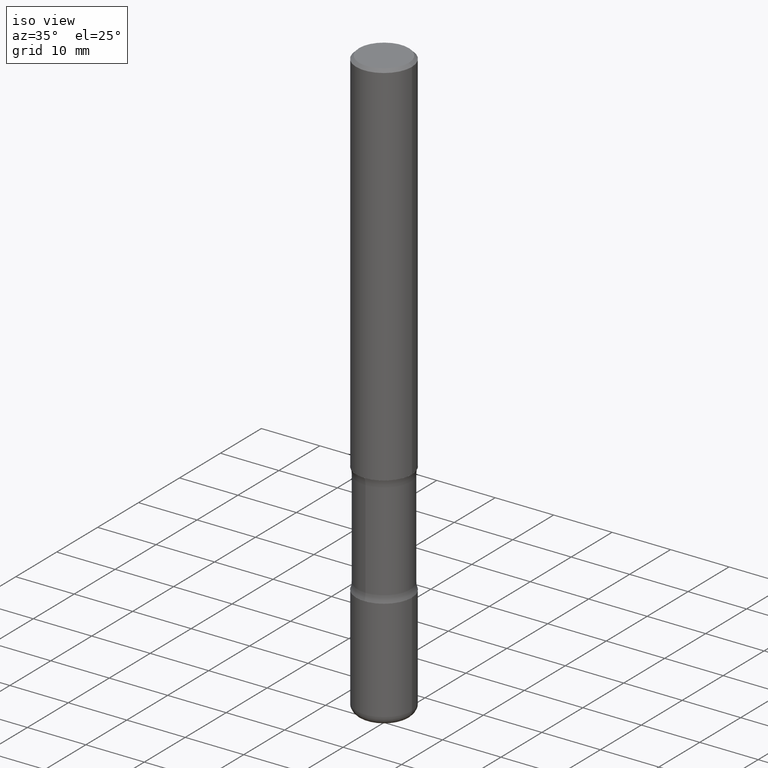
[diagram: clean part render]
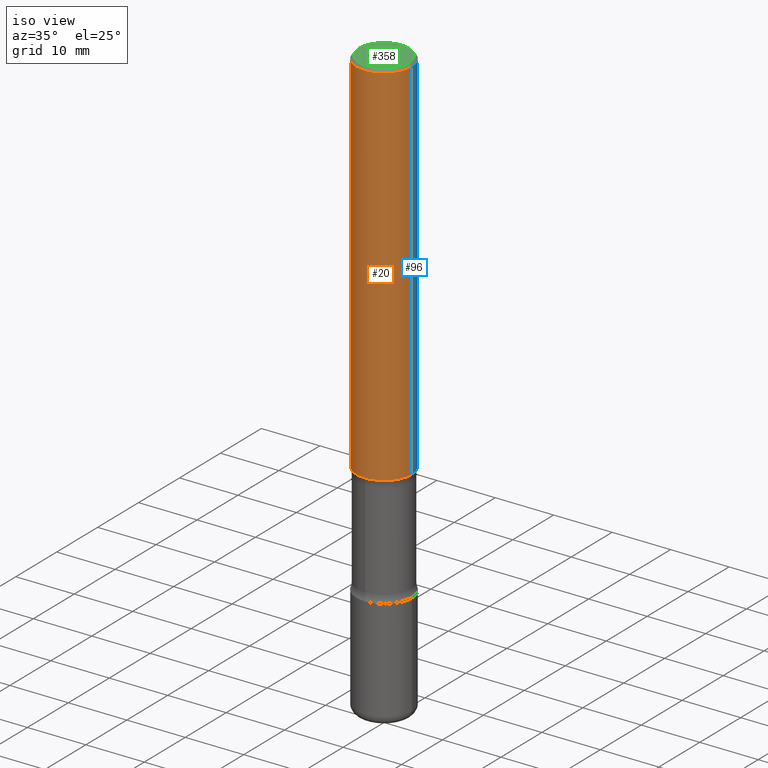
[diagram: same view with three faces highlighted in distinct colors, each labeled with its STEP entity id]
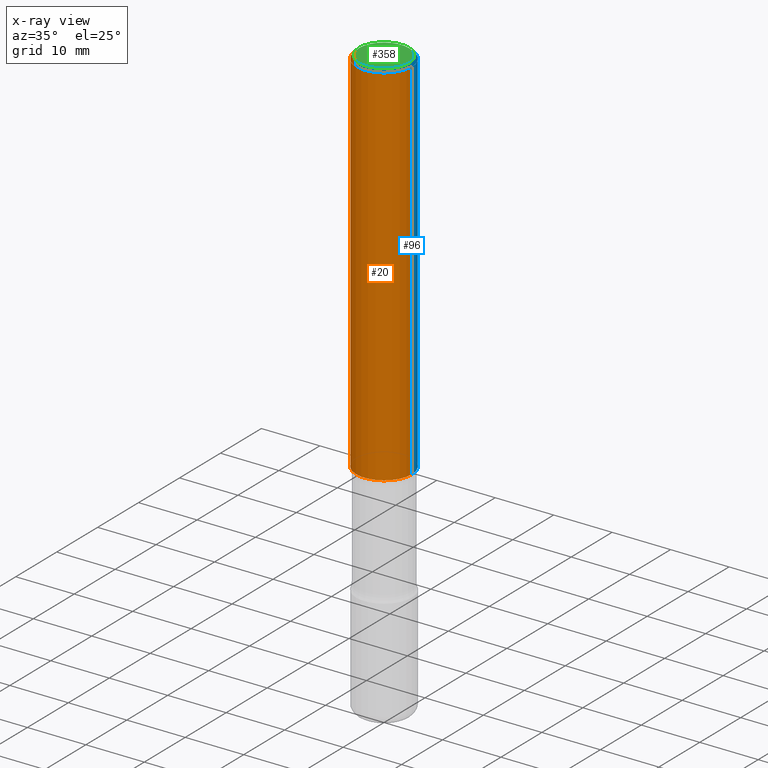
[diagram: x-ray of the same camera — body ghosted, the three highlighted faces saturated]
A machine part, iso view with three faces highlighted in distinct colors.
The next image is the same camera in x-ray (body ghosted, the three faces saturated) — at least one of them is partly hidden behind the body in this view.
Their STEP definitions:

[orange] entity #20 — the highlighted cylindrical surface (edge-blend (fillet) strip) has radius 4.7625 mm, axis along (-0, 0, 1).
#20 = ADVANCED_FACE ( 'NONE', ( #355 ), #52, .T. ) ;
#33 = DIRECTION ( 'NONE',  ( -2.445468806185136597E-29, 3.491481338843145583E-15, 1.000000000000000000 ) ) ;
#49 = AXIS2_PLACEMENT_3D ( 'NONE', #408, #33, #119 ) ;
#52 = CYLINDRICAL_SURFACE ( 'NONE', #530, 0.1875000000000000278 ) ;
#70 = VERTEX_POINT ( 'NONE', #217 ) ;
#77 = LINE ( 'NONE', #511, #277 ) ;
#91 = CIRCLE ( 'NONE', #49, 0.1875000000000001110 ) ;
#117 = CIRCLE ( 'NONE', #311, 0.1874999999999999167 ) ;
#119 = DIRECTION ( 'NONE',  ( 1.000000000000000000, -6.982962677686263555E-15, 0.000000000000000000 ) ) ;
#131 = DIRECTION ( 'NONE',  ( -2.445468806185136877E-29, 3.491481338843145188E-15, 1.000000000000000000 ) ) ;
#158 = DIRECTION ( 'NONE',  ( -2.445468806185136597E-29, 3.491481338843145583E-15, 1.000000000000000000 ) ) ;
#167 = EDGE_CURVE ( 'NONE', #388, #339, #77, .T. ) ;
#196 = DIRECTION ( 'NONE',  ( -2.445468806185136877E-29, 3.491481338843145188E-15, 1.000000000000000000 ) ) ;
#204 = ORIENTED_EDGE ( 'NONE', *, *, #300, .F. ) ;
#208 = ORIENTED_EDGE ( 'NONE', *, *, #261, .T. ) ;
#217 = CARTESIAN_POINT ( 'NONE',  ( 0.1874999999999999167, -1.356173001359024677E-15, -0.02000000000000006981 ) ) ;
#251 = CARTESIAN_POINT ( 'NONE',  ( -0.1875000000000000833, -3.066998857392172722E-15, -2.500000000000000000 ) ) ;
#261 = EDGE_CURVE ( 'NONE', #388, #526, #91, .T. ) ;
#263 = DIRECTION ( 'NONE',  ( 1.000000000000000000, -6.982962677686265922E-15, 4.876176775795935793E-29 ) ) ;
#272 = CARTESIAN_POINT ( 'NONE',  ( 0.000000000000000000, 0.000000000000000000, 0.000000000000000000 ) ) ;
#277 = VECTOR ( 'NONE', #196, 39.37007874015748143 ) ;
#300 = EDGE_CURVE ( 'NONE', #339, #70, #117, .T. ) ;
#310 = LINE ( 'NONE', #389, #548 ) ;
#311 = AXIS2_PLACEMENT_3D ( 'NONE', #554, #158, #423 ) ;
#339 = VERTEX_POINT ( 'NONE', #381 ) ;
#355 = FACE_OUTER_BOUND ( 'NONE', #552, .T. ) ;
#381 = CARTESIAN_POINT ( 'NONE',  ( -0.1874999999999999167, 1.239475875289311118E-15, -0.02000000000000006981 ) ) ;
#388 = VERTEX_POINT ( 'NONE', #251 ) ;
#389 = CARTESIAN_POINT ( 'NONE',  ( 0.1875000000000000278, -1.309305502066175008E-15, 9.142831454617381013E-30 ) ) ;
#408 = CARTESIAN_POINT ( 'NONE',  ( 6.113672015462842613E-29, -8.728703347107864943E-15, -2.500000000000000000 ) ) ;
#423 = DIRECTION ( 'NONE',  ( 1.000000000000000000, -6.982962677686265922E-15, 0.000000000000000000 ) ) ;
#445 = CARTESIAN_POINT ( 'NONE',  ( 0.1875000000000001110, -1.003800884917403995E-14, -2.500000000000000000 ) ) ;
#509 = ORIENTED_EDGE ( 'NONE', *, *, #167, .F. ) ;
#511 = CARTESIAN_POINT ( 'NONE',  ( -0.1875000000000000278, 1.332267629550188046E-15, -9.223003294227947991E-30 ) ) ;
#512 = ORIENTED_EDGE ( 'NONE', *, *, #513, .T. ) ;
#513 = EDGE_CURVE ( 'NONE', #526, #70, #310, .T. ) ;
#526 = VERTEX_POINT ( 'NONE', #445 ) ;
#530 = AXIS2_PLACEMENT_3D ( 'NONE', #272, #538, #263 ) ;
#538 = DIRECTION ( 'NONE',  ( -2.445468806185136597E-29, 3.491481338843145583E-15, 1.000000000000000000 ) ) ;
#548 = VECTOR ( 'NONE', #131, 39.37007874015748143 ) ;
#552 = EDGE_LOOP ( 'NONE', ( #509, #208, #512, #204 ) ) ;
#554 = CARTESIAN_POINT ( 'NONE',  ( 4.890937612370289799E-31, -6.982962677686315028E-17, -0.02000000000000006981 ) ) ;

[blue] entity #96 — the highlighted cylindrical surface (edge-blend (fillet) strip) has radius 4.7625 mm, axis along (-0, 0, 1).
#30 = CIRCLE ( 'NONE', #171, 0.1875000000000001110 ) ;
#41 = DIRECTION ( 'NONE',  ( -2.445468806185136597E-29, 3.491481338843145583E-15, 1.000000000000000000 ) ) ;
#54 = EDGE_LOOP ( 'NONE', ( #473, #201, #560, #291 ) ) ;
#70 = VERTEX_POINT ( 'NONE', #217 ) ;
#77 = LINE ( 'NONE', #511, #277 ) ;
#96 = ADVANCED_FACE ( 'NONE', ( #350 ), #446, .T. ) ;
#126 = CARTESIAN_POINT ( 'NONE',  ( 6.113672015462842613E-29, -8.728703347107864943E-15, -2.500000000000000000 ) ) ;
#128 = DIRECTION ( 'NONE',  ( 1.000000000000000000, -6.982962677686265922E-15, 0.000000000000000000 ) ) ;
#131 = DIRECTION ( 'NONE',  ( -2.445468806185136877E-29, 3.491481338843145188E-15, 1.000000000000000000 ) ) ;
#167 = EDGE_CURVE ( 'NONE', #388, #339, #77, .T. ) ;
#171 = AXIS2_PLACEMENT_3D ( 'NONE', #126, #41, #378 ) ;
#196 = DIRECTION ( 'NONE',  ( -2.445468806185136877E-29, 3.491481338843145188E-15, 1.000000000000000000 ) ) ;
#201 = ORIENTED_EDGE ( 'NONE', *, *, #167, .T. ) ;
#205 = AXIS2_PLACEMENT_3D ( 'NONE', #527, #343, #128 ) ;
#217 = CARTESIAN_POINT ( 'NONE',  ( 0.1874999999999999167, -1.356173001359024677E-15, -0.02000000000000006981 ) ) ;
#251 = CARTESIAN_POINT ( 'NONE',  ( -0.1875000000000000833, -3.066998857392172722E-15, -2.500000000000000000 ) ) ;
#274 = DIRECTION ( 'NONE',  ( 1.000000000000000000, -6.982962677686265922E-15, 4.876176775795935793E-29 ) ) ;
#277 = VECTOR ( 'NONE', #196, 39.37007874015748143 ) ;
#291 = ORIENTED_EDGE ( 'NONE', *, *, #513, .F. ) ;
#310 = LINE ( 'NONE', #389, #548 ) ;
#339 = VERTEX_POINT ( 'NONE', #381 ) ;
#343 = DIRECTION ( 'NONE',  ( -2.445468806185136597E-29, 3.491481338843145583E-15, 1.000000000000000000 ) ) ;
#350 = FACE_OUTER_BOUND ( 'NONE', #54, .T. ) ;
#351 = EDGE_CURVE ( 'NONE', #70, #339, #451, .T. ) ;
#357 = AXIS2_PLACEMENT_3D ( 'NONE', #390, #439, #274 ) ;
#378 = DIRECTION ( 'NONE',  ( 1.000000000000000000, -6.982962677686263555E-15, 0.000000000000000000 ) ) ;
#381 = CARTESIAN_POINT ( 'NONE',  ( -0.1874999999999999167, 1.239475875289311118E-15, -0.02000000000000006981 ) ) ;
#388 = VERTEX_POINT ( 'NONE', #251 ) ;
#389 = CARTESIAN_POINT ( 'NONE',  ( 0.1875000000000000278, -1.309305502066175008E-15, 9.142831454617381013E-30 ) ) ;
#390 = CARTESIAN_POINT ( 'NONE',  ( 0.000000000000000000, 0.000000000000000000, 0.000000000000000000 ) ) ;
#416 = EDGE_CURVE ( 'NONE', #526, #388, #30, .T. ) ;
#439 = DIRECTION ( 'NONE',  ( -2.445468806185136597E-29, 3.491481338843145583E-15, 1.000000000000000000 ) ) ;
#445 = CARTESIAN_POINT ( 'NONE',  ( 0.1875000000000001110, -1.003800884917403995E-14, -2.500000000000000000 ) ) ;
#446 = CYLINDRICAL_SURFACE ( 'NONE', #357, 0.1875000000000000278 ) ;
#451 = CIRCLE ( 'NONE', #205, 0.1874999999999999167 ) ;
#473 = ORIENTED_EDGE ( 'NONE', *, *, #416, .T. ) ;
#511 = CARTESIAN_POINT ( 'NONE',  ( -0.1875000000000000278, 1.332267629550188046E-15, -9.223003294227947991E-30 ) ) ;
#513 = EDGE_CURVE ( 'NONE', #526, #70, #310, .T. ) ;
#526 = VERTEX_POINT ( 'NONE', #445 ) ;
#527 = CARTESIAN_POINT ( 'NONE',  ( 4.890937612370289799E-31, -6.982962677686315028E-17, -0.02000000000000006981 ) ) ;
#548 = VECTOR ( 'NONE', #131, 39.37007874015748143 ) ;
#560 = ORIENTED_EDGE ( 'NONE', *, *, #351, .F. ) ;

[green] entity #358 — the highlighted planar face has unit normal (0, -0, -1).
#40 = AXIS2_PLACEMENT_3D ( 'NONE', #121, #336, #79 ) ;
#79 = DIRECTION ( 'NONE',  ( -1.000000000000000000, 6.982962677686265922E-15, -4.876176775795935793E-29 ) ) ;
#100 = CIRCLE ( 'NONE', #501, 0.1674999999999998990 ) ;
#113 = DIRECTION ( 'NONE',  ( 1.000000000000000000, -6.982962677686265922E-15, 4.876176775795935793E-29 ) ) ;
#115 = CARTESIAN_POINT ( 'NONE',  ( 0.000000000000000000, 0.000000000000000000, 0.000000000000000000 ) ) ;
#121 = CARTESIAN_POINT ( 'NONE',  ( 1.169646248512448806E-15, 0.1674999999999998990, -5.848231242562264739E-16 ) ) ;
#127 = VERTEX_POINT ( 'NONE', #144 ) ;
#143 = CIRCLE ( 'NONE', #432, 0.1674999999999998990 ) ;
#144 = CARTESIAN_POINT ( 'NONE',  ( 0.1674999999999998990, -1.252653207992877500E-15, 8.469775550109235181E-30 ) ) ;
#194 = EDGE_CURVE ( 'NONE', #127, #331, #100, .T. ) ;
#231 = DIRECTION ( 'NONE',  ( -2.445468806185136597E-29, 3.491481338843145583E-15, 1.000000000000000000 ) ) ;
#264 = DIRECTION ( 'NONE',  ( -2.445468806185136597E-29, 3.491481338843145583E-15, 1.000000000000000000 ) ) ;
#290 = CARTESIAN_POINT ( 'NONE',  ( -0.1674999999999998990, 1.204561061900880061E-15, -8.301862719484106184E-30 ) ) ;
#324 = ORIENTED_EDGE ( 'NONE', *, *, #194, .T. ) ;
#331 = VERTEX_POINT ( 'NONE', #290 ) ;
#333 = FACE_OUTER_BOUND ( 'NONE', #477, .T. ) ;
#336 = DIRECTION ( 'NONE',  ( 2.438088387897960049E-29, -3.491481338843145188E-15, -1.000000000000000000 ) ) ;
#338 = PLANE ( 'NONE',  #40 ) ;
#358 = ADVANCED_FACE ( 'NONE', ( #333 ), #338, .F. ) ;
#432 = AXIS2_PLACEMENT_3D ( 'NONE', #529, #264, #435 ) ;
#435 = DIRECTION ( 'NONE',  ( 1.000000000000000000, -6.982962677686265922E-15, 4.876176775795935793E-29 ) ) ;
#457 = ORIENTED_EDGE ( 'NONE', *, *, #484, .T. ) ;
#477 = EDGE_LOOP ( 'NONE', ( #457, #324 ) ) ;
#484 = EDGE_CURVE ( 'NONE', #331, #127, #143, .T. ) ;
#501 = AXIS2_PLACEMENT_3D ( 'NONE', #115, #231, #113 ) ;
#529 = CARTESIAN_POINT ( 'NONE',  ( 0.000000000000000000, 0.000000000000000000, 0.000000000000000000 ) ) ;